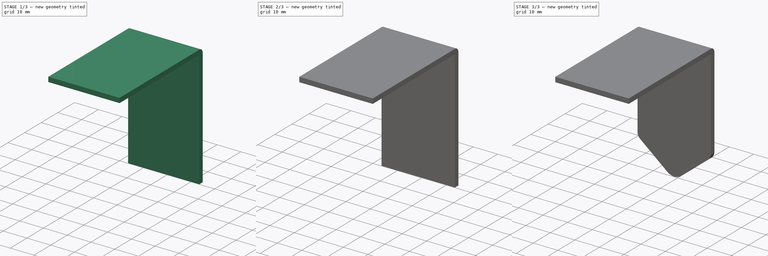
[diagram: build sequence overview — one tinted view per stage of 3, left to right]
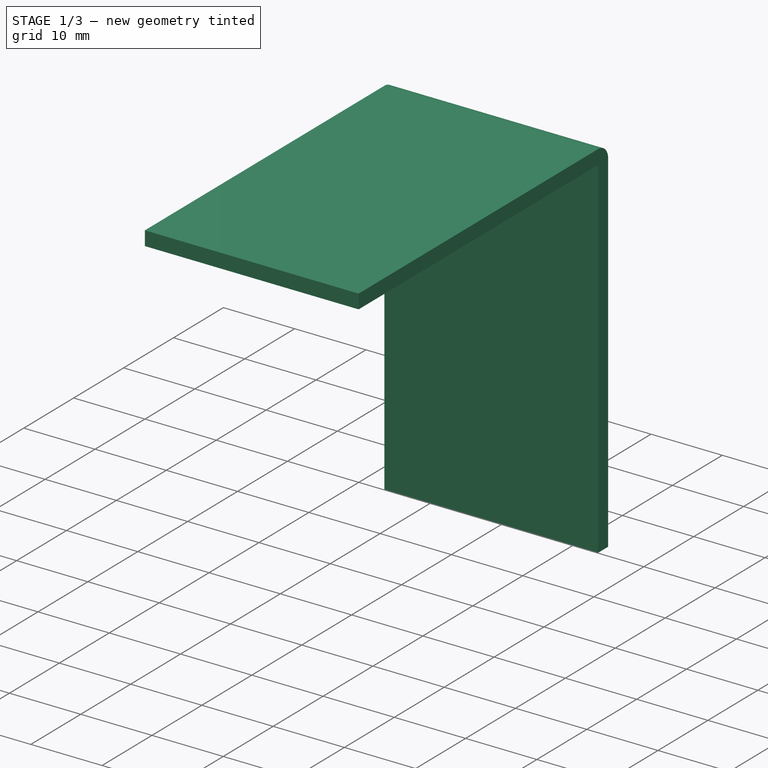
[diagram: stage 1 of 3 — iso view after this stage's code; geometry added in this stage tinted green]
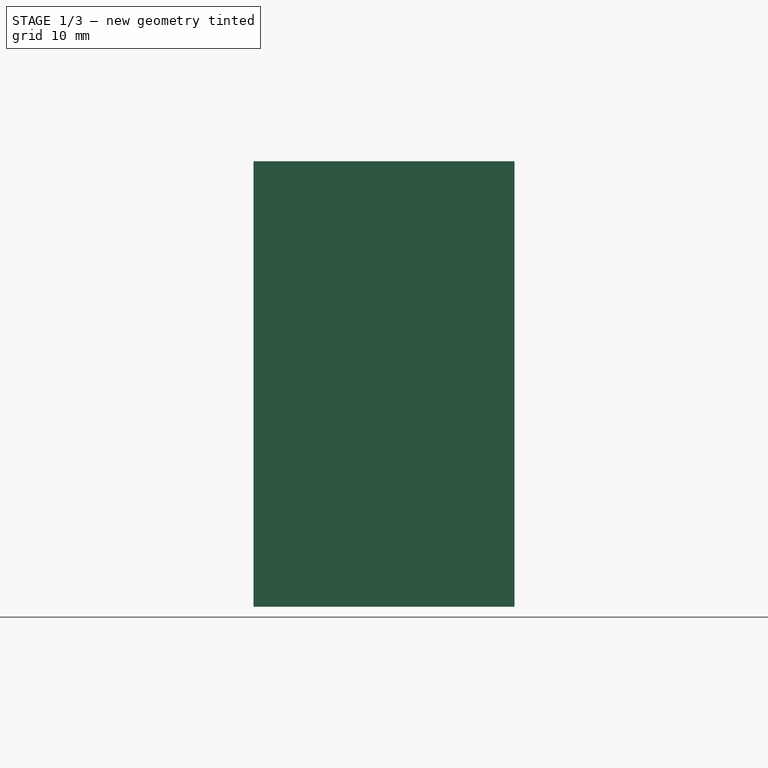
[diagram: stage 1 of 3 — front view after this stage's code; geometry added in this stage tinted green]
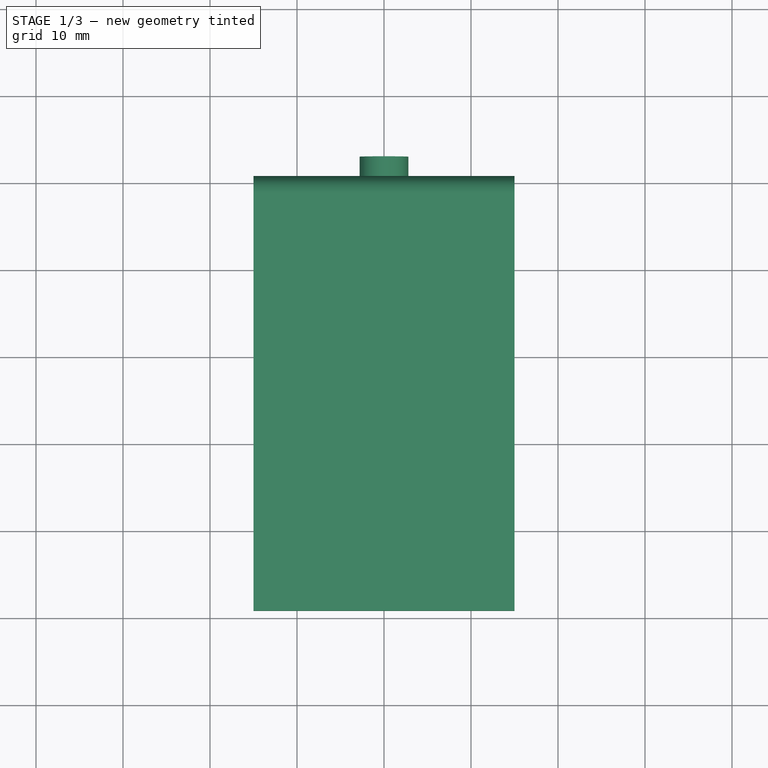
[diagram: stage 1 of 3 — top view after this stage's code; geometry added in this stage tinted green]
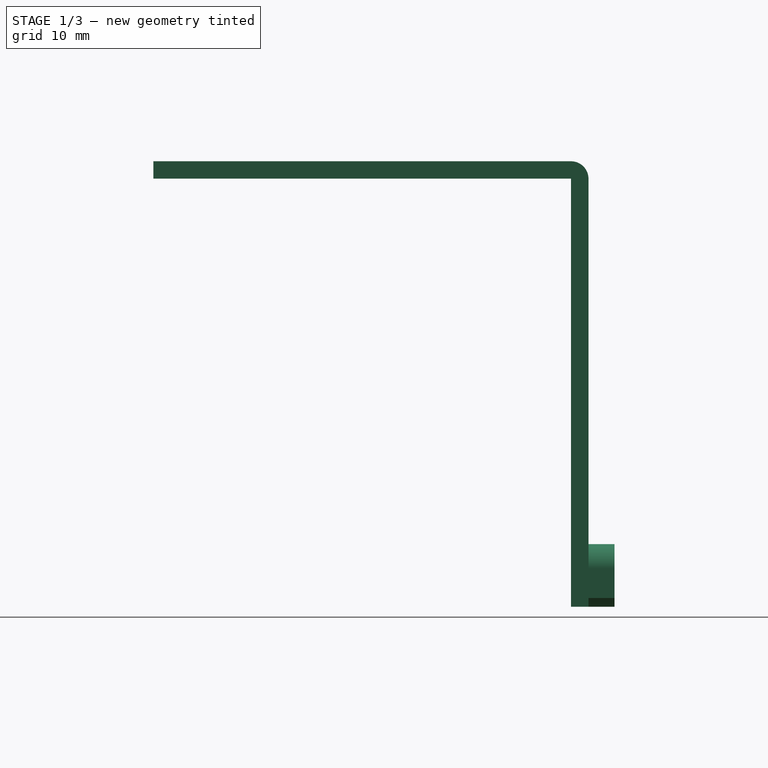
[diagram: stage 1 of 3 — right view after this stage's code; geometry added in this stage tinted green]
FCSTD DOCUMENT  (FreeCAD 0.21R33771 (Git))
Label: ClockHanger
License: All rights reserved
LicenseURL: http://en.wikipedia.org/wiki/All_rights_reserved
objects: Sketcher::SketchObject×6, PartDesign::Pad×3, PartDesign::Pocket×2, PartDesign::Body×1
note: 17 computed .brp shape members not serialized (recipe doc carries the construction recipe); baked Part::Feature solids carry a one-line shape summary decoded from their .brp

FEATURE [Sketcher::SketchObject] Sketch
  FullyConstrained = true
  MapMode = 5
  Placement = pos=(0,0,0) rot=(0.57735,0.57735,0.57735;2.0944rad)
  Support = -> [YZ_Plane]
  expr: Constraints[13] = <<Template>>.Constraints.Ro
  expr: Constraints[18] = <<Template>>.Constraints.Hi
  sketch-geometry (7):
    g0: LineSegment StartX=-50 StartY=44.8 StartZ=0 EndX=-2 EndY=44.8 EndZ=0
    g1: LineSegment StartX=-2 StartY=44.8 StartZ=0 EndX=-2 EndY=-4.4 EndZ=0
    g2: LineSegment StartX=-2 StartY=-4.4 StartZ=0 EndX=0 EndY=-4.4 EndZ=0
    g3: LineSegment StartX=0 StartY=-4.4 StartZ=0 EndX=0 EndY=44.8 EndZ=0
    g4: LineSegment StartX=-2 StartY=46.8 StartZ=0 EndX=-50 EndY=46.8 EndZ=0
    g5: LineSegment StartX=-50 StartY=46.8 StartZ=0 EndX=-50 EndY=44.8 EndZ=0
    g6: ArcOfCircle CenterX=-2 CenterY=44.8 CenterZ=0 NormalX=0 NormalY=0 NormalZ=1 AngleXU=0 Radius=2 StartAngle=7.98e-14 EndAngle=1.5708
  constraints (19):
    c: Horizontal(g0)
    c: Coincident(g0,g1)
    c: Vertical(g1)
    c: Coincident(g1,g2)
    c: Horizontal(g2)
    c: Coincident(g2,g3)
    c: Vertical(g3)
    c: Horizontal(g4)
    c: Coincident(g4,g5)
    c: Vertical(g5)
    c: Coincident(g0,g5)
    c: DistanceY(g5,g5) = 2
    c: PointOnObject(g-1,g3)
    c: DistanceY(g2,g-1) = 4.4
    c: Tangent(g3,g6) = -1.5708
    c: Tangent(g4,g6) = -1.5708
    c: DistanceX(g4,g3) = 50
    c: Coincident(g6,g0)
    c: DistanceY(g1,g0) = 49.2
FEATURE [PartDesign::Pad] Pad
  Direction = (1,-2e-16,3e-16)
  Length = 30
  Length2 = 10
  Midplane = true
  Placement = pos=(0,0,0) rot=(1,1,1;2.0944rad)
  Profile = -> Sketch
  ReferenceAxis = -> Sketch [N_Axis]
  Type = 0
  expr: Length = <<Template>>.Constraints.Width
FEATURE [Sketcher::SketchObject] Sketch001  label="Template"
  FullyConstrained = true
  MapMode = 5
  Placement = pos=(0,0,0) rot=(0,0.707107,0.707107;3.14159rad)
  Support = -> [XZ_Plane]
  sketch-geometry (22):
    g0: ArcOfCircle CenterX=0 CenterY=-7.3 CenterZ=0 NormalX=0 NormalY=0 NormalZ=1 AngleXU=0 Radius=5.8 StartAngle=2.15523 EndAngle=7.26955
    g1: LineSegment StartX=-3.2 StartY=-2.46265 StartZ=0 EndX=3.2 EndY=-2.46265 EndZ=0
    g2: LineSegment StartX=-3.2 StartY=-2.46265 StartZ=0 EndX=-3.2 EndY=4e-16 EndZ=0
    g3: LineSegment StartX=3.2 StartY=-2.46265 StartZ=0 EndX=3.2 EndY=4e-16 EndZ=0
    g4: ArcOfCircle CenterX=0 CenterY=0 CenterZ=0 NormalX=0 NormalY=0 NormalZ=1 AngleXU=0 Radius=3.2 StartAngle=0 EndAngle=3.14159
    g5: LineSegment StartX=-3.2 StartY=4e-16 StartZ=0 EndX=3.2 EndY=4e-16 EndZ=0
    g6: GeomPoint X=0 Y=3.2 Z=0
    g7: GeomPoint X=0 Y=-13.1 Z=0
    g8: LineSegment StartX=0 StartY=3.2 StartZ=0 EndX=0 EndY=-13.1 EndZ=0
    g9: Circle CenterX=0 CenterY=0 CenterZ=0 NormalX=0 NormalY=0 NormalZ=1 AngleXU=0 Radius=2.8
    g10: Circle CenterX=0 CenterY=0 CenterZ=0 NormalX=0 NormalY=0 NormalZ=1 AngleXU=0 Radius=4.4
    g11: LineSegment StartX=-2.8 StartY=0 StartZ=0 EndX=-2.8 EndY=-3.39411 EndZ=0
    g12: LineSegment StartX=2.8 StartY=-3e-16 StartZ=0 EndX=2.8 EndY=-3.39411 EndZ=0
    g13: LineSegment StartX=-15 StartY=44.8 StartZ=0 EndX=15 EndY=44.8 EndZ=0
    g14: LineSegment StartX=15 StartY=44.8 StartZ=0 EndX=15 EndY=-4.4 EndZ=0
    g15: LineSegment StartX=15 StartY=-4.4 StartZ=0 EndX=-15 EndY=-4.4 EndZ=0
    g16: LineSegment StartX=-15 StartY=-4.4 StartZ=0 EndX=-15 EndY=44.8 EndZ=0
    g17: LineSegment StartX=-2.8 StartY=-3.39411 StartZ=0 EndX=-13.9818 EndY=5.8305 EndZ=0
    g18: LineSegment StartX=2.8 StartY=-3.39411 StartZ=0 EndX=13.9818 EndY=5.8305 EndZ=0
    g19: ArcOfCircle CenterX=12.2 CenterY=7.99039 CenterZ=0 NormalX=0 NormalY=0 NormalZ=1 AngleXU=0 Radius=2.8 StartAngle=5.40217 EndAngle=6.28319
    g20: ArcOfCircle CenterX=-12.2 CenterY=7.99039 CenterZ=0 NormalX=0 NormalY=0 NormalZ=1 AngleXU=0 Radius=2.8 StartAngle=3.14159 EndAngle=4.02261
    g21: GeomPoint X=0 Y=2.8 Z=0
  constraints (57):
    c: Coincident(g1,g0)
    c: Coincident(g1,g0)
    c: Horizontal(g1)
    c: Coincident(g2,g0)
    c: Vertical(g2)
    c: Coincident(g3,g0)
    c: Vertical(g3)
    c: Coincident(g5,g2)
    c: Coincident(g5,g3)
    c: Horizontal(g5)
    c: PointOnObject(g4,g5)
    c: Radius(g0) = 5.8
    c: Radius(g4) = 3.2
    c: Coincident(g4,g3)
    c: Coincident(g4,g2)
    c: PointOnObject(g6,g4)
    c: PointOnObject(g7,g0)
    c: Coincident(g8,g6)
    c: Coincident(g8,g7)
    c: Vertical(g8)
    c: PointOnObject(g0,g8)
    c: DistanceY(g8,g8) = 16.3
    c: Coincident(g-1,g4)
    c: Coincident(g9,g4)
    c: Radius(g9) = 2.8  'Ri'
    c: Coincident(g10,g9)
    c: Radius(g10) = 4.4  'Ro'
    c: PointOnObject(g11,g10)
    c: Vertical(g11)
    c: PointOnObject(g12,g10)
    c: Vertical(g12)
    c: Tangent(g11,g9) = -1.5708
    c: Tangent(g12,g9) = 1.5708
    c: Coincident(g13,g14)
    c: Coincident(g14,g15)
    c: Coincident(g15,g16)
    c: Coincident(g16,g13)
    c: Horizontal(g13)
    c: Vertical(g14)
    c: Vertical(g16)
    c: Tangent(g15,g10)
    c: Symmetric(g14,g15,g8)
    c: DistanceX(g13,g13) = 30  'Width'
    c: Coincident(g18,g12)
    c: Coincident(g17,g11)
    c: Tangent(g17,g10)
    c: Tangent(g18,g10)
    c: Equal(g20,g19)
    c: Equal(g19,g9)
    c: Tangent(g19,g18) = -1.5708
    c: Tangent(g20,g17) = 1.5708
    c: Tangent(g20,g16) = 1.5708
    c: Tangent(g19,g14) = 1.5708
    c: PointOnObject(g21,g9)
    c: PointOnObject(g21,g8)
    c: DistanceY(g21,g13) = 42
    c: DistanceY(g15,g13) = 49.2  'Hi'
FEATURE [Sketcher::SketchObject] Sketch002
  ExternalGeometry = -> [Sketch001]
  FullyConstrained = true
  MapMode = 5
  Placement = pos=(0,0,0) rot=(0,0.707107,0.707107;3.14159rad)
  Support = -> [XZ_Plane]
  sketch-geometry (4):
    g0: ArcOfCircle CenterX=2e-16 CenterY=4.16625e-06 CenterZ=0 NormalX=0 NormalY=0 NormalZ=1 AngleXU=0 Radius=2.8 StartAngle=6.28318 EndAngle=9.42478
    g1: ArcOfCircle CenterX=-8e-16 CenterY=0 CenterZ=0 NormalX=0 NormalY=0 NormalZ=1 AngleXU=0 Radius=4.4 StartAngle=4.02261 EndAngle=5.40216
    g2: LineSegment StartX=-2.8 StartY=7e-16 StartZ=0 EndX=-2.8 EndY=-3.39411 EndZ=0
    g3: LineSegment StartX=2.8 StartY=-1e-15 StartZ=0 EndX=2.8 EndY=-3.39411 EndZ=0
  constraints (10):
    c: Coincident(g2,g0)
    c: Coincident(g2,g1)
    c: Coincident(g3,g0)
    c: Coincident(g3,g1)
    c: Coincident(g-6,g0)
    c: Coincident(g1,g-6)
    c: Coincident(g-5,g1)
    c: Coincident(g-5,g0)
    c: Equal(g0,g-3)
    c: Equal(g1,g-4)
FEATURE [PartDesign::Pad] Pad001
  BaseFeature = -> Pad
  Direction = (0,1,2e-16)
  Length = 3
  Length2 = 10
  Placement = pos=(0,0,0) rot=(1,1,1;2.0944rad)
  Profile = -> Sketch002
  ReferenceAxis = -> Sketch002 [N_Axis]
  Type = 0
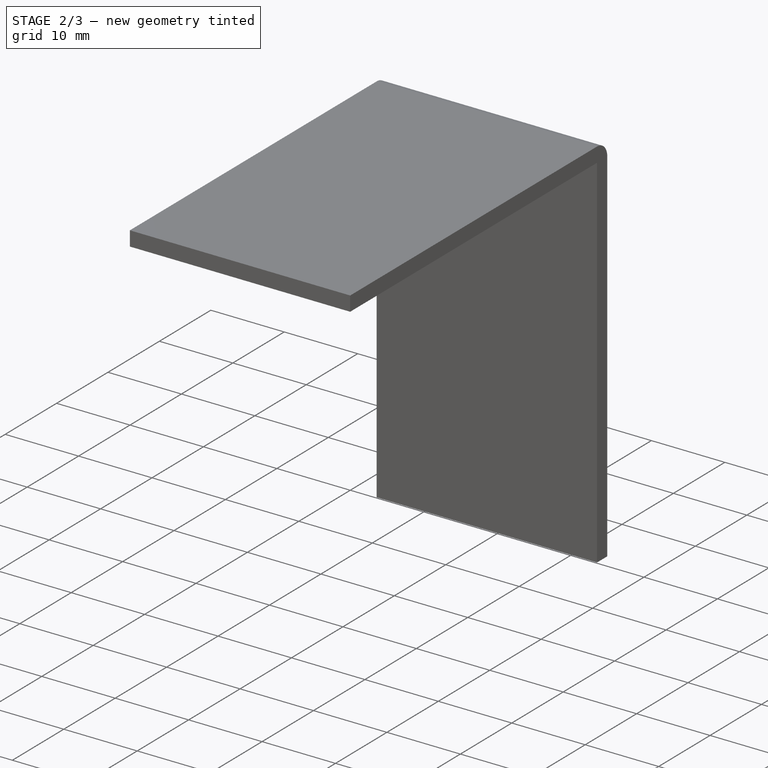
[diagram: stage 2 of 3 — iso view after this stage's code; geometry added in this stage tinted green]
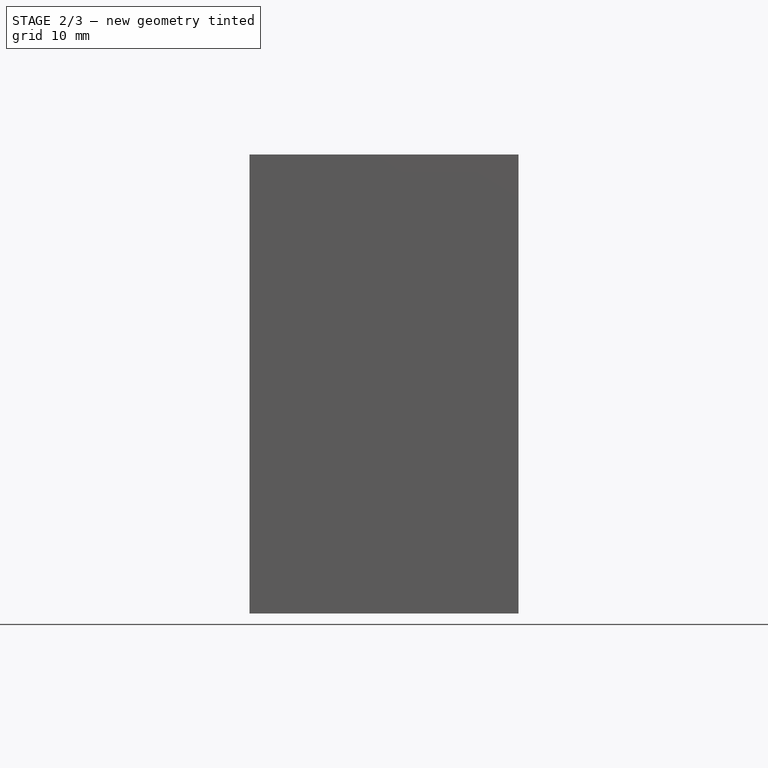
[diagram: stage 2 of 3 — front view after this stage's code; geometry added in this stage tinted green]
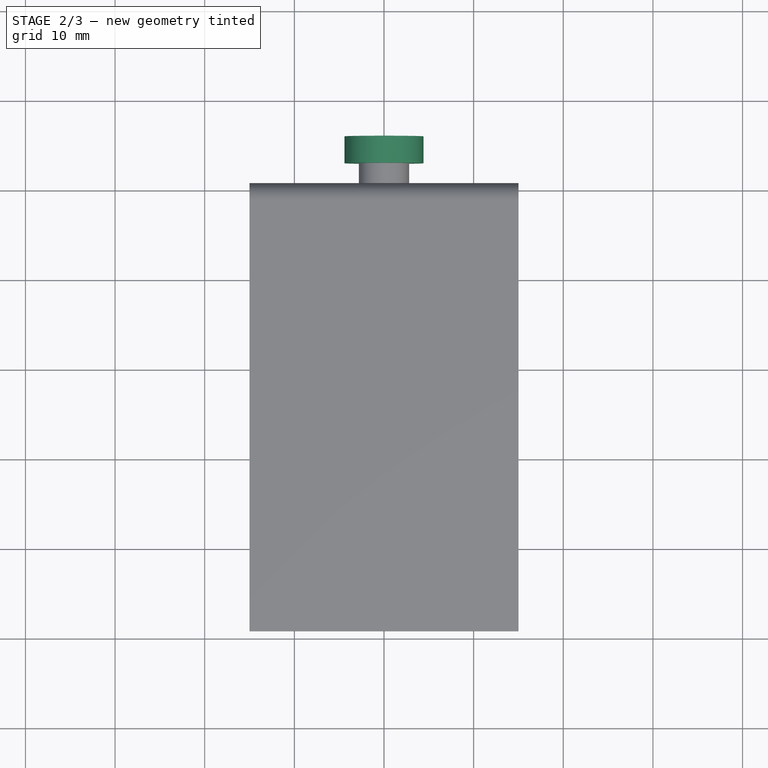
[diagram: stage 2 of 3 — top view after this stage's code; geometry added in this stage tinted green]
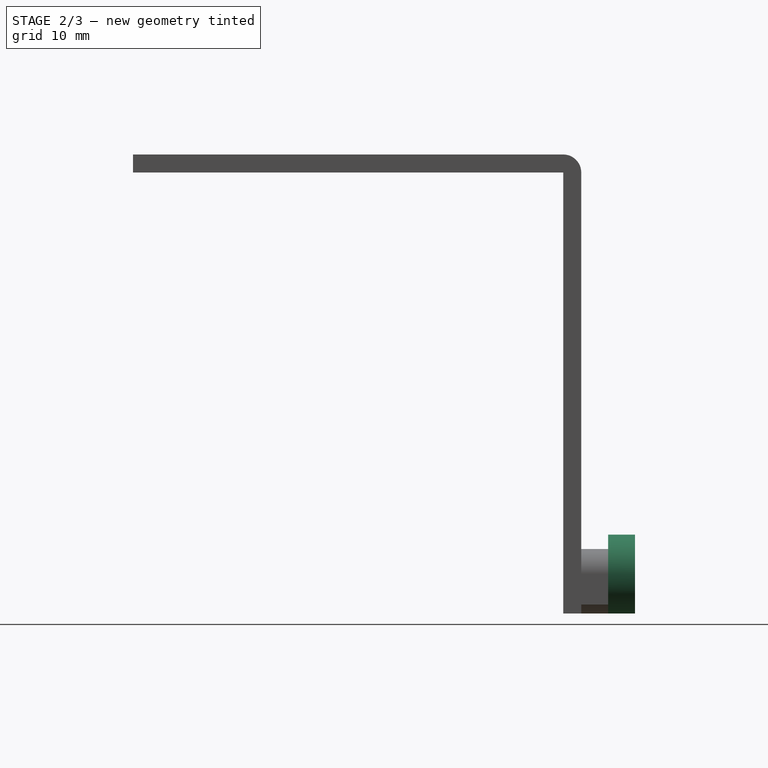
[diagram: stage 2 of 3 — right view after this stage's code; geometry added in this stage tinted green]
FEATURE [Sketcher::SketchObject] Sketch003
  AttachmentOffset = pos=(0,0,3) rot=(0,0,1;0rad)
  ExternalGeometry = -> [Sketch001]
  FullyConstrained = true
  MapMode = 5
  Placement = pos=(0,3,7e-16) rot=(0,0.707107,0.707107;3.14159rad)
  Support = -> [XZ_Plane]
  expr: .AttachmentOffset.Base.z = <<Pad001>>.Length
  sketch-geometry (1):
    g0: Circle CenterX=0 CenterY=-1e-16 CenterZ=0 NormalX=0 NormalY=0 NormalZ=1 AngleXU=0 Radius=4.4
  constraints (2):
    c: Coincident(g0,g-3)
    c: Equal(g-3,g0)
FEATURE [PartDesign::Pad] Pad002
  BaseFeature = -> Pad001
  Direction = (0,1,2e-16)
  Length = 3
  Length2 = 10
  Placement = pos=(0,0,0) rot=(1,1,1;2.0944rad)
  Profile = -> Sketch003
  ReferenceAxis = -> Sketch003 [N_Axis]
  Type = 0
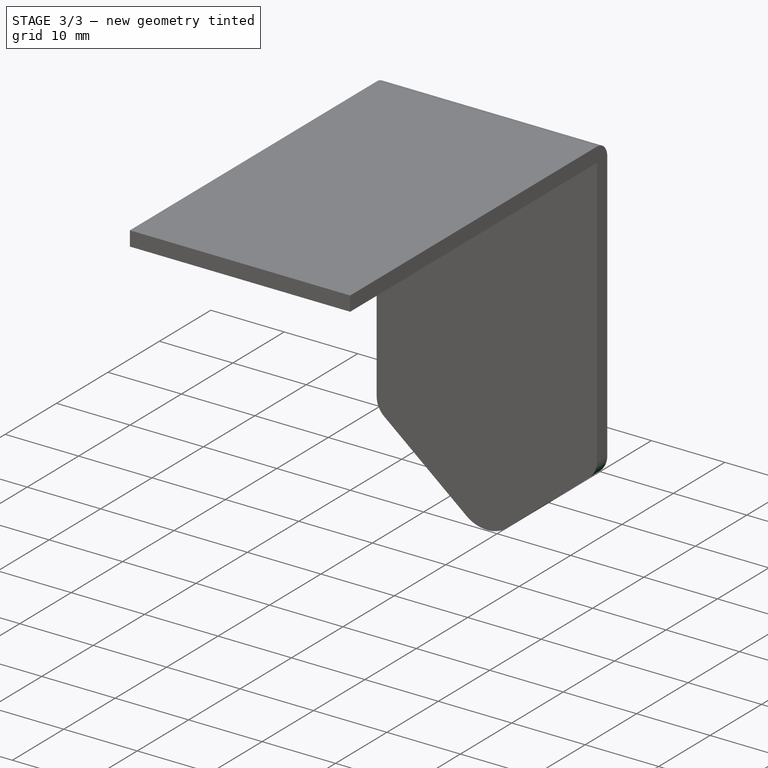
[diagram: stage 3 of 3 — iso view after this stage's code; geometry added in this stage tinted green]
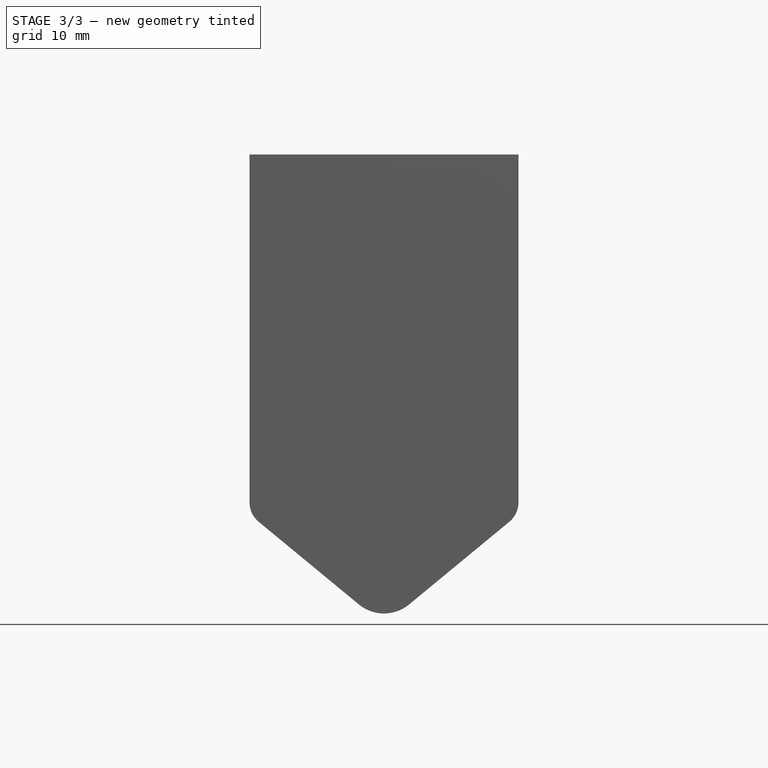
[diagram: stage 3 of 3 — front view after this stage's code; geometry added in this stage tinted green]
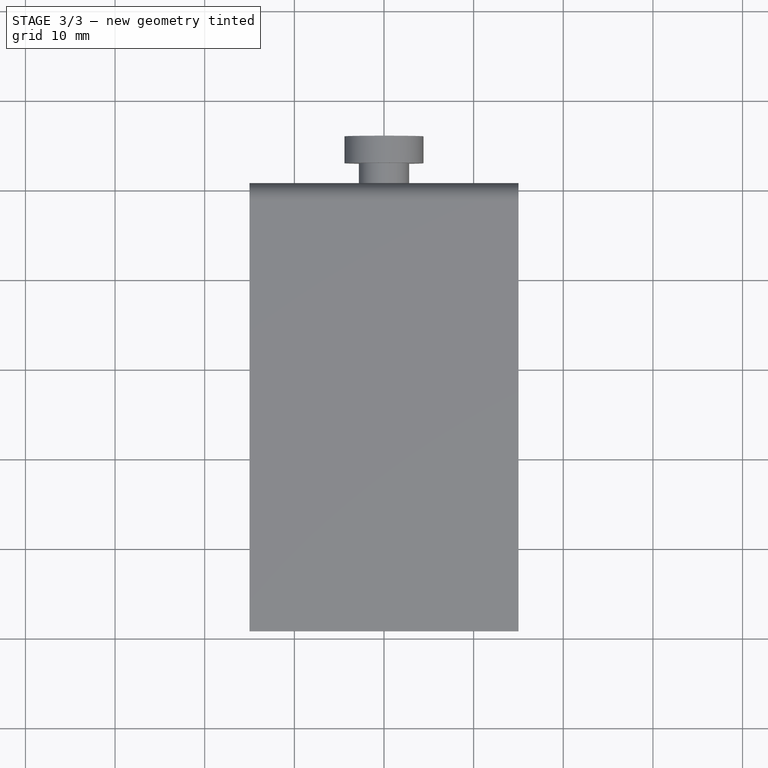
[diagram: stage 3 of 3 — top view after this stage's code; geometry added in this stage tinted green]
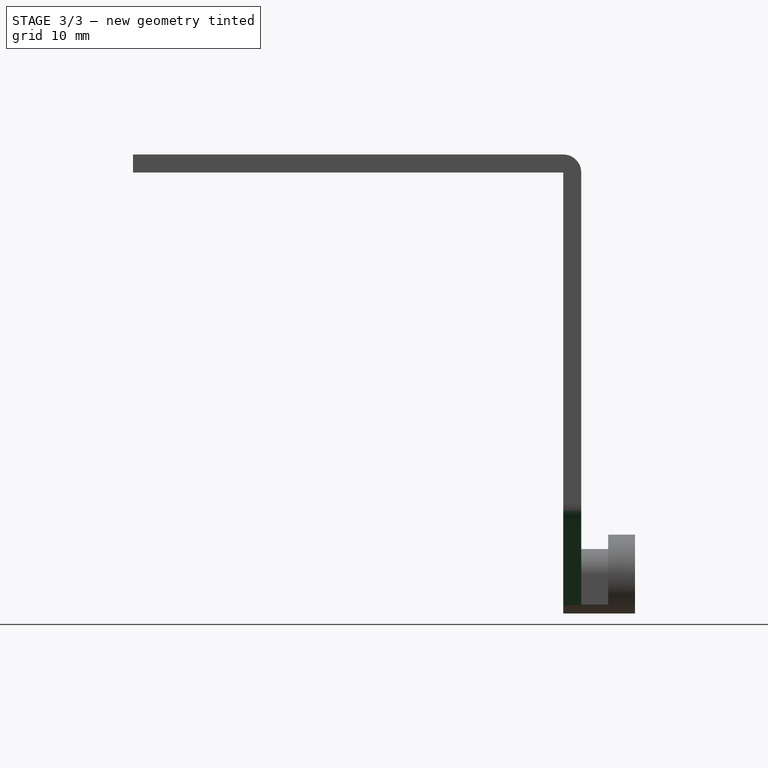
[diagram: stage 3 of 3 — right view after this stage's code; geometry added in this stage tinted green]
FEATURE [Sketcher::SketchObject] Sketch004
  ExternalGeometry = -> [Sketch001]
  FullyConstrained = true
  MapMode = 5
  Placement = pos=(0,0,0) rot=(1,0,0;1.5708rad)
  Support = -> [XZ_Plane]
  sketch-geometry (7):
    g0: ArcOfCircle CenterX=-12.2 CenterY=7.99039 CenterZ=0 NormalX=0 NormalY=0 NormalZ=1 AngleXU=0 Radius=2.8 StartAngle=3.14159 EndAngle=4.02261
    g1: ArcOfCircle CenterX=0 CenterY=0 CenterZ=0 NormalX=0 NormalY=0 NormalZ=1 AngleXU=0 Radius=4.4 StartAngle=4.02261 EndAngle=4.71239
    g2: LineSegment StartX=-17 StartY=7.99039 StartZ=0 EndX=-17 EndY=-6.4 EndZ=0
    g3: LineSegment StartX=-17 StartY=-6.4 StartZ=0 EndX=0 EndY=-6.4 EndZ=0
    g4: LineSegment StartX=-13.9818 StartY=5.8305 StartZ=0 EndX=-2.8 EndY=-3.39411 EndZ=0
    g5: LineSegment StartX=-15 StartY=7.99039 StartZ=0 EndX=-17 EndY=7.99039 EndZ=0
    g6: LineSegment StartX=0 StartY=-4.4 StartZ=0 EndX=0 EndY=-6.4 EndZ=0
  constraints (19):
    c: Coincident(g0,g-4)
    c: Coincident(g1,g-4)
    c: Equal(g0,g-3)
    c: Coincident(g4,g0)
    c: Coincident(g4,g1)
    c: Coincident(g1,g-5)
    c: PointOnObject(g1,g-2)
    c: Tangent(g0,g-9) = -1.5708
    c: Coincident(g5,g0)
    c: Horizontal(g5)
    c: Coincident(g2,g5)
    c: Vertical(g2)
    c: Horizontal(g3)
    c: Coincident(g6,g1)
    c: Vertical(g6)
    c: Coincident(g3,g6)
    c: Coincident(g2,g3)
    c: DistanceX(g5,g5) = 2
    c: Equal(g6,g5)
FEATURE [PartDesign::Pocket] Pocket
  BaseFeature = -> Pad002
  Direction = (0,1,2e-16)
  Length = 5
  Length2 = 5
  Placement = pos=(0,0,0) rot=(1,1,1;2.0944rad)
  Profile = -> Sketch004
  ReferenceAxis = -> Sketch004 [N_Axis]
  Reversed = true
  Type = 0
FEATURE [Sketcher::SketchObject] Sketch005
  ExternalGeometry = -> [Sketch001]
  FullyConstrained = true
  MapMode = 5
  Placement = pos=(0,0,0) rot=(1,0,0;1.5708rad)
  Support = -> [XZ_Plane]
  sketch-geometry (7):
    g0: ArcOfCircle CenterX=12.2 CenterY=7.99039 CenterZ=0 NormalX=0 NormalY=0 NormalZ=1 AngleXU=0 Radius=2.8 StartAngle=5.40217 EndAngle=6.28319
    g1: ArcOfCircle CenterX=0 CenterY=0 CenterZ=0 NormalX=0 NormalY=0 NormalZ=1 AngleXU=0 Radius=4.4 StartAngle=4.71239 EndAngle=5.40216
    g2: LineSegment StartX=17 StartY=7.99039 StartZ=0 EndX=17 EndY=-6.4 EndZ=0
    g3: LineSegment StartX=17 StartY=-6.4 StartZ=0 EndX=0 EndY=-6.4 EndZ=0
    g4: LineSegment StartX=2.8 StartY=-3.39411 StartZ=0 EndX=13.9818 EndY=5.8305 EndZ=0
    g5: LineSegment StartX=15 StartY=7.99039 StartZ=0 EndX=17 EndY=7.99039 EndZ=0
    g6: LineSegment StartX=0 StartY=-4.4 StartZ=0 EndX=0 EndY=-6.4 EndZ=0
  constraints (19):
    c: Coincident(g0,g-3)
    c: Coincident(g-5,g1)
    c: Equal(g0,g-3)
    c: Coincident(g1,g-6)
    c: Coincident(g4,g1)
    c: Coincident(g4,g0)
    c: Horizontal(g3)
    c: Vertical(g2)
    c: Coincident(g2,g3)
    c: Coincident(g5,g0)
    c: Horizontal(g5)
    c: Vertical(g6)
    c: PointOnObject(g1,g-2)
    c: Coincident(g6,g1)
    c: Equal(g5,g6)
    c: DistanceX(g5,g5) = 2
    c: Coincident(g0,g-3)
    c: Coincident(g2,g5)
    c: Coincident(g3,g6)
FEATURE [PartDesign::Pocket] Pocket001
  BaseFeature = -> Pocket
  Direction = (0,1,2e-16)
  Length = 5
  Length2 = 5
  Placement = pos=(0,0,0) rot=(1,1,1;2.0944rad)
  Profile = -> Sketch005
  ReferenceAxis = -> Sketch005 [N_Axis]
  Refine = true
  Reversed = true
  Type = 0
FEATURE [PartDesign::Body] Body
  Group = -> [Sketch001,Sketch,Pad,Sketch002,Pad001,Sketch003,Pad002,Sketch004,Pocket,Sketch005,Pocket001]
  Origin = -> Origin
  Tip = -> Pocket001
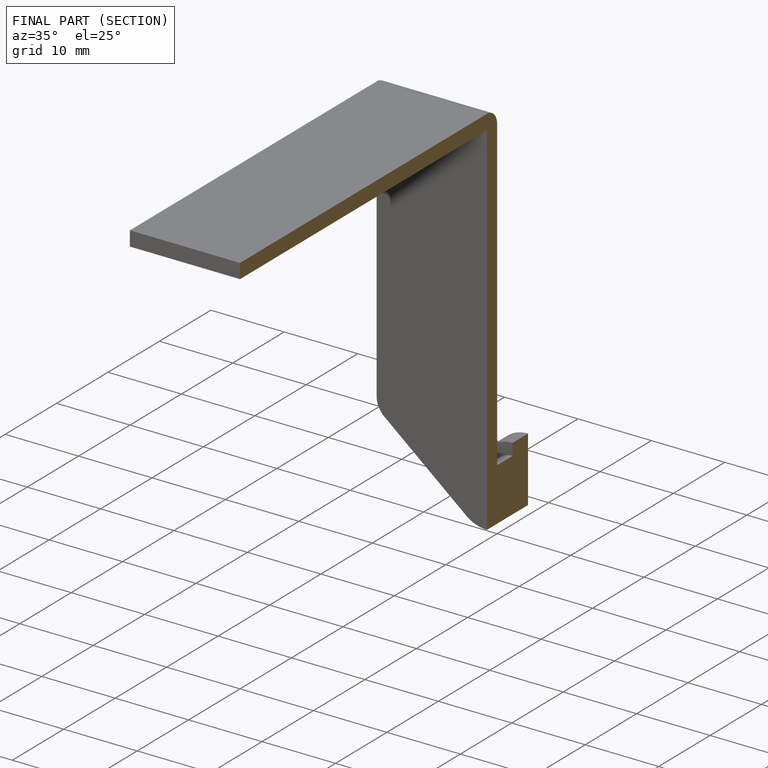
[diagram: finished part — half-section view (interior)]
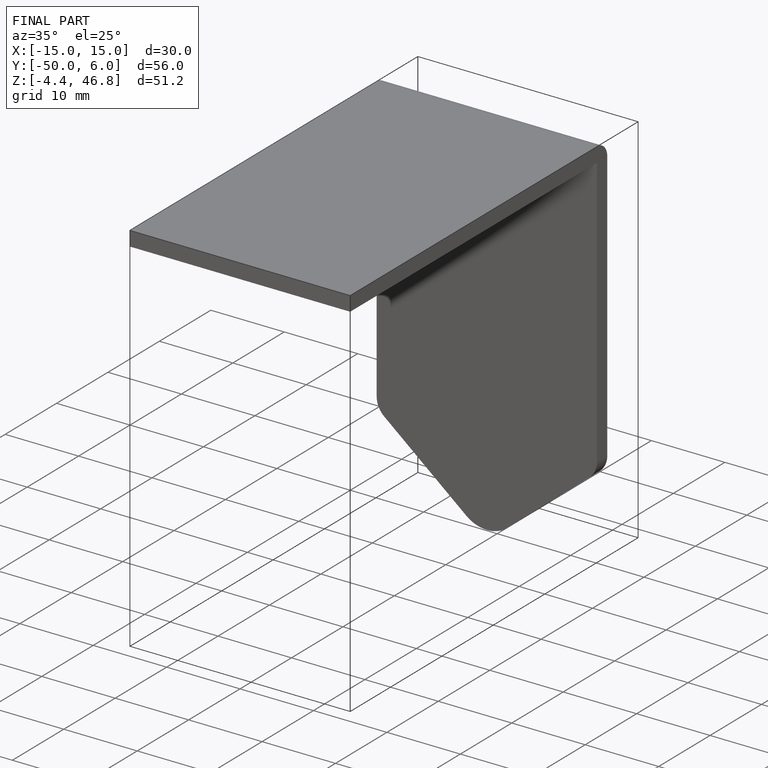
[diagram: finished part — iso view with bounding-box wireframe]
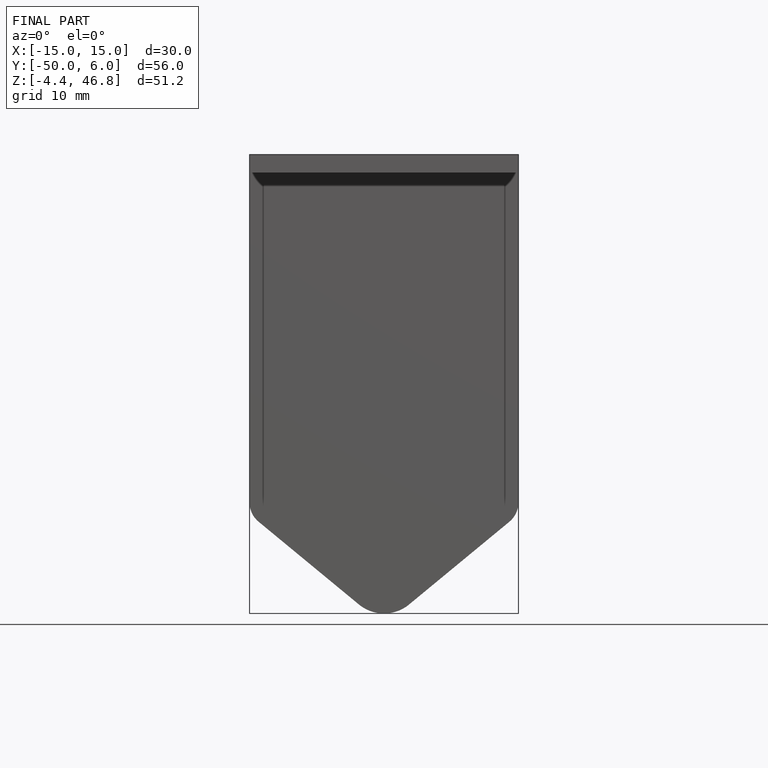
[diagram: finished part — front view with bounding-box wireframe]
